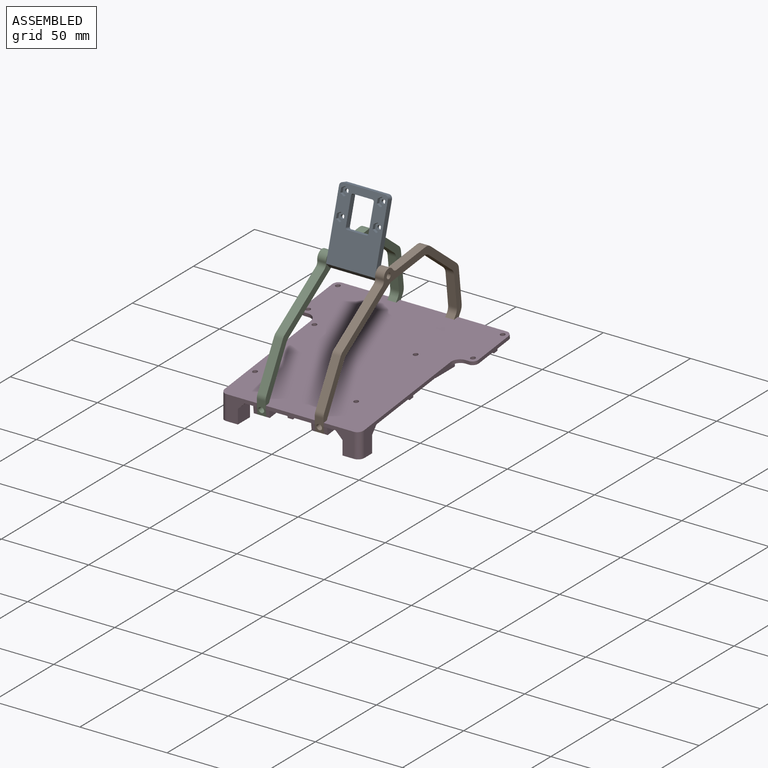
[diagram: assembled view]
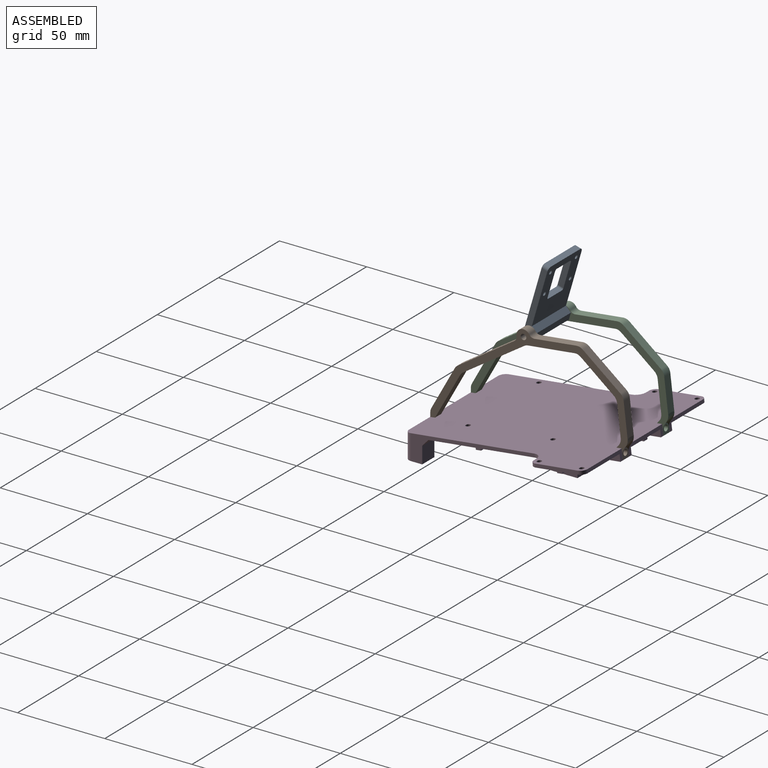
[diagram: assembled view, second angle]
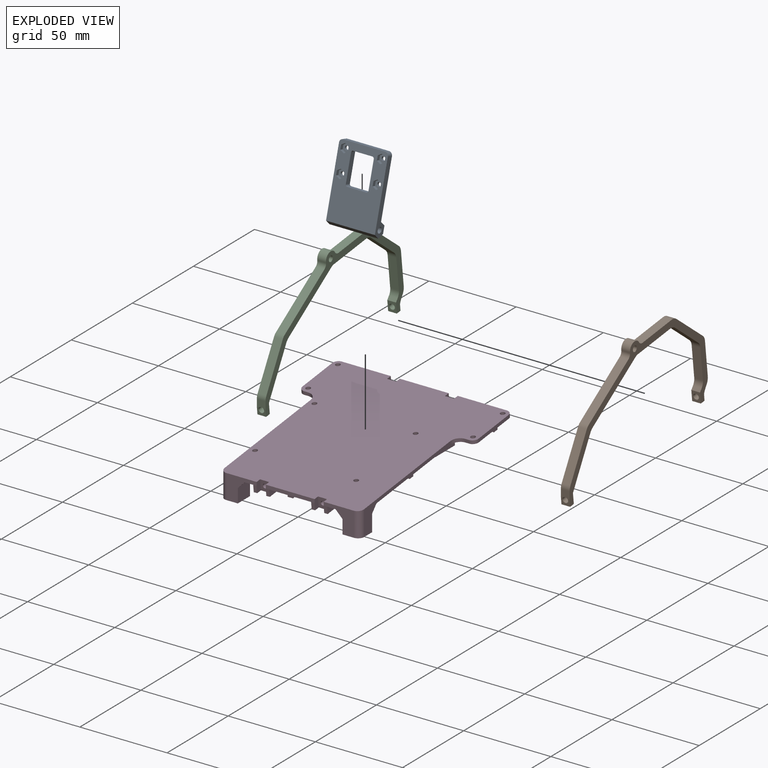
[diagram: exploded view]
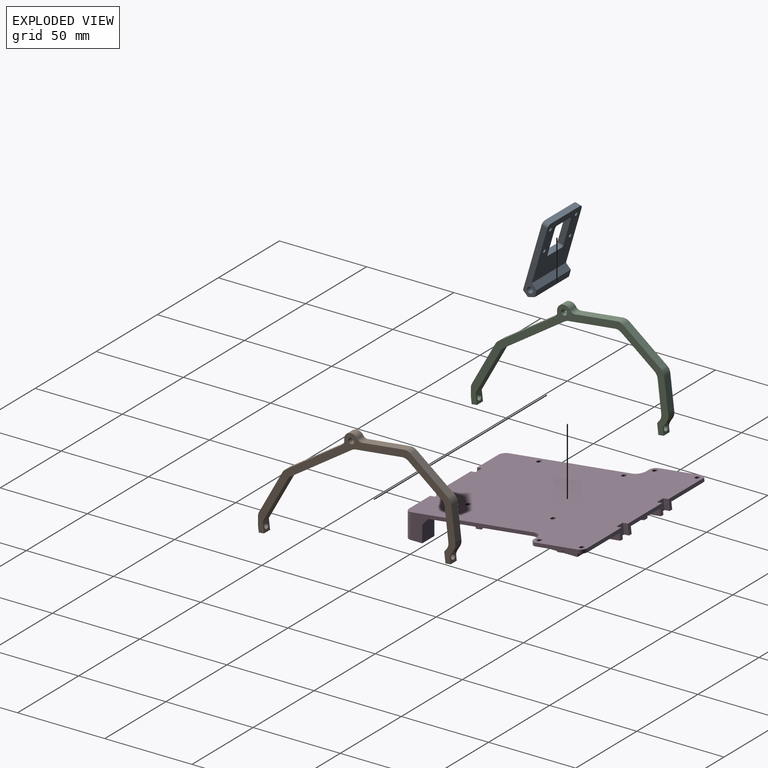
[diagram: exploded view, second angle]
ASSEMBLY  parts=4 mates=4
PART A: 52 faces, bbox 42x28x7 mm
  f0: cylinder r=1.1mm len=2.2mm, axis (0,0,1), area 10.4mm2, adj f4,f45
  f1: cylinder r=1.1mm len=2.2mm, axis (0,0,1), area 10.4mm2, adj f4,f38
  f2: cylinder r=1.1mm len=2.2mm, axis (0,0,1), area 10.4mm2, adj f4,f31
  f3: cylinder r=1.1mm len=2.2mm, axis (0,0,1), area 10.4mm2, adj f4,f24
  f4: plane 33.96x28mm, normal (0,0,1), area 707.3mm2, adj f0,f1,f2,f3,f6,f11,f12,f13
  f5: plane 40.02x28mm, normal (0,0,-1), area 828.2mm2, adj f9,f11,f12,f13,f14,f15,f16,f17
  f6: plane 28x3.5mm, normal (0.87,0,0.5), area 113.2mm2, adj f4,f7,f12,f13
  f7: plane 28x4.04mm, normal (0,0,1), area 113.2mm2, adj f6,f8,f12,f13
  f8: plane 28x3.5mm, normal (-0.87,0,0.5), area 113.2mm2, adj f7,f9,f12,f13
  f9: plane 28x3.5mm, normal (-0.87,0,-0.5), area 113.2mm2, adj f5,f8,f12,f13
  f10: cylinder r=1.65mm len=28mm, axis (0,1,0), area 290.3mm2, adj f12,f13
  f11: plane 24x3.5mm, normal (1,0,0), area 84mm2, adj f4,f5,f18,f19
  f12: plane 40.04x7mm, normal (0,-1,0), area 149.3mm2, adj f4,f5,f6,f7,f8,f9,f10,f19
  f13: plane 40.04x7mm, normal (0,1,0), area 149.3mm2, adj f4,f5,f6,f7,f8,f9,f10,f18
  f14: plane 11x3.5mm, normal (-1,0,0), area 38.5mm2, adj f4,f5,f20,f23
  f15: plane 15.5x3.5mm, normal (0,-1,0), area 54.2mm2, adj f4,f5,f22,f23
  f16: plane 11x3.5mm, normal (1,0,0), area 38.5mm2, adj f4,f5,f21,f22
  f17: plane 15.5x3.5mm, normal (0,1,0), area 54.3mm2, adj f4,f5,f20,f21
  f18: cylinder r=2mm len=3.5mm, axis (0,0,1), area 11mm2, adj f4,f5,f11,f13
  f19: cylinder r=2mm len=3.5mm, axis (0,0,-1), area 11mm2, adj f4,f5,f11,f12
  f20: cylinder r=1mm len=3.5mm, axis (0,0,-1), area 5.5mm2, adj f4,f5,f14,f17
  f21: cylinder r=1mm len=3.5mm, axis (0,0,1), area 5.5mm2, adj f4,f5,f16,f17
  f22: cylinder r=1mm len=3.5mm, axis (0,0,-1), area 5.5mm2, adj f4,f5,f15,f16
  f23: cylinder r=1mm len=3.5mm, axis (0,0,1), area 5.5mm2, adj f4,f5,f14,f15
  f24: plane 4.97x4.3mm, normal (0,0,-1), area 12.2mm2, adj f3,f25,f26,f27,f28,f29,f30
  f25: plane 2.48x2mm, normal (0,-1,0), area 5mm2, adj f5,f24,f26,f30
  f26: plane 2.15x2mm, normal (-0.87,-0.5,0), area 5mm2, adj f5,f24,f25,f27
  f27: plane 2.15x2mm, normal (-0.87,0.5,0), area 5mm2, adj f5,f24,f26,f28
  f28: plane 2.48x2mm, normal (0,1,0), area 5mm2, adj f5,f24,f27,f29
  f29: plane 2.15x2mm, normal (0.87,0.5,0), area 5mm2, adj f5,f24,f28,f30
  f30: plane 2.15x2mm, normal (0.87,-0.5,0), area 5mm2, adj f5,f24,f25,f29
  f31: plane 4.97x4.3mm, normal (0,0,-1), area 12.2mm2, adj f2,f32,f33,f34,f35,f36,f37
  f32: plane 2.48x2mm, normal (0,-1,0), area 5mm2, adj f5,f31,f33,f37
  f33: plane 2.15x2mm, normal (-0.87,-0.5,0), area 5mm2, adj f5,f31,f32,f34
  f34: plane 2.15x2mm, normal (-0.87,0.5,0), area 5mm2, adj f5,f31,f33,f35
  f35: plane 2.48x2mm, normal (0,1,0), area 5mm2, adj f5,f31,f34,f36
  f36: plane 2.15x2mm, normal (0.87,0.5,0), area 5mm2, adj f5,f31,f35,f37
  f37: plane 2.15x2mm, normal (0.87,-0.5,0), area 5mm2, adj f5,f31,f32,f36
  f38: plane 4.97x4.3mm, normal (0,0,-1), area 12.2mm2, adj f1,f39,f40,f41,f42,f43,f44
  f39: plane 2.48x2mm, normal (0,-1,0), area 5mm2, adj f5,f38,f40,f44
  f40: plane 2.15x2mm, normal (-0.87,-0.5,0), area 5mm2, adj f5,f38,f39,f41
  f41: plane 2.15x2mm, normal (-0.87,0.5,0), area 5mm2, adj f5,f38,f40,f42
  f42: plane 2.48x2mm, normal (0,1,0), area 5mm2, adj f5,f38,f41,f43
  f43: plane 2.15x2mm, normal (0.87,0.5,0), area 5mm2, adj f5,f38,f42,f44
  f44: plane 2.15x2mm, normal (0.87,-0.5,0), area 5mm2, adj f5,f38,f39,f43
  f45: plane 4.97x4.3mm, normal (0,0,-1), area 12.2mm2, adj f0,f46,f47,f48,f49,f50,f51
  f46: plane 2.48x2mm, normal (0,-1,0), area 5mm2, adj f5,f45,f47,f51
  f47: plane 2.15x2mm, normal (-0.87,-0.5,0), area 5mm2, adj f5,f45,f46,f48
  f48: plane 2.15x2mm, normal (-0.87,0.5,0), area 5mm2, adj f5,f45,f47,f49
  f49: plane 2.48x2mm, normal (0,1,0), area 5mm2, adj f5,f45,f48,f50
  f50: plane 2.15x2mm, normal (0.87,0.5,0), area 5mm2, adj f5,f45,f49,f51
  f51: plane 2.15x2mm, normal (0.87,-0.5,0), area 5mm2, adj f5,f45,f46,f50
PART B: 37 faces, bbox 10.4x113.6x65.9 mm
  f0: plane 113.47x65.94mm, normal (1,0,0), area 717.5mm2, adj f3,f4,f5,f6,f7,f8,f9,f10
  f1: plane 113.47x65.94mm, normal (-1,0,0), area 717.5mm2, adj f3,f4,f5,f6,f7,f8,f9,f10
  f2: cylinder r=1.6mm len=3.53mm, axis (0,0.99,0.12), area 30.2mm2, adj f3,f21
  f3: plane 5.96x5mm, normal (0,-0.99,-0.12), area 22mm2, adj f0,f1,f2,f4,f20
  f4: plane 5x2.98mm, normal (0,0.12,-0.99), area 15mm2, adj f0,f1,f3,f21
  f5: plane 19.25x5mm, normal (0,0.99,0.12), area 95.7mm2, adj f0,f1,f27,f29
  f6: plane 21.56x17mm, normal (0,0.62,0.79), area 137.3mm2, adj f0,f1,f29,f30
  f7: plane 24.04x5mm, normal (0,-0.12,0.99), area 121.1mm2, adj f0,f1,f25,f30
  f8: plane 32.45x21.43mm, normal (0,-0.55,0.83), area 194.5mm2, adj f0,f1,f26,f31
  f9: plane 24.24x13.44mm, normal (0,-0.87,0.49), area 138.6mm2, adj f0,f1,f31,f32
  f10: plane 5.14x4.48mm, normal (0,-1,0), area 20.7mm2, adj f0,f1,f11,f19,f32
  f11: plane 5x3.97mm, normal (0,-0.99,-0.12), area 13mm2, adj f0,f1,f10,f12,f19
  f12: plane 5x2.98mm, normal (0,0.12,-0.99), area 15mm2, adj f0,f1,f11,f13
  f13: plane 5.96x5mm, normal (0,0.99,0.12), area 22mm2, adj f0,f1,f12,f14,f19
  f14: plane 25.87x14.35mm, normal (0,0.87,-0.49), area 147.9mm2, adj f0,f1,f13,f33
  f15: plane 35.13x23.2mm, normal (0,0.55,-0.83), area 210.5mm2, adj f0,f1,f33,f34
  f16: plane 26.56x5mm, normal (0,0.12,-0.99), area 133.7mm2, adj f0,f1,f34,f35
  f17: plane 18.96x14.95mm, normal (0,-0.62,-0.79), area 120.7mm2, adj f0,f1,f35,f36
  f18: plane 17.73x5mm, normal (0,-0.99,-0.12), area 89.3mm2, adj f0,f1,f28,f36
  f19: cylinder r=1.6mm len=3.53mm, axis (0,-0.99,-0.12), area 30.2mm2, adj f10,f11,f13
  f20: plane 5x1.71mm, normal (0,-0.79,0.62), area 10.9mm2, adj f0,f1,f3,f28
  f21: plane 5.46x5mm, normal (0,0.99,0.12), area 16.8mm2, adj f0,f1,f2,f4,f22
  f22: cone r=2.5mm half-angle=45deg, axis (0,0.99,0.12), area 20.2mm2, adj f0,f1,f21,f27
  f23: cylinder r=4mm len=7.39mm, axis (1,0,0), area 54.4mm2, adj f0,f1,f25,f26
  f24: cylinder r=1.6mm len=5mm, axis (1,0,0), area 50.3mm2, adj f0,f1
  f25: cylinder r=3mm len=5mm, axis (1,0,0), area 16.9mm2, adj f0,f1,f7,f23
  f26: cylinder r=3mm len=5mm, axis (1,0,0), area 16.9mm2, adj f0,f1,f8,f23
  f27: torus R=8.57mm, axis (0,0.99,0.12), area 21mm2, adj f0,f1,f5,f22
  f28: cylinder r=5mm len=5mm, axis (-1,0,0), area 19.6mm2, adj f0,f1,f18,f20
  f29: cylinder r=5mm len=5mm, axis (-1,0,0), area 19.6mm2, adj f0,f1,f5,f6
  f30: cylinder r=5mm len=5mm, axis (-1,0,0), area 19.6mm2, adj f0,f1,f6,f7
  f31: cylinder r=5mm len=5mm, axis (-1,0,0), area 12mm2, adj f0,f1,f8,f9
  f32: cylinder r=5mm len=5mm, axis (-1,0,0), area 12.7mm2, adj f0,f1,f9,f10
  f33: cylinder r=5mm len=5mm, axis (1,0,0), area 12mm2, adj f0,f1,f14,f15
  f34: cylinder r=5mm len=5mm, axis (1,0,0), area 11.7mm2, adj f0,f1,f15,f16
  f35: cylinder r=5mm len=5mm, axis (1,0,0), area 19.6mm2, adj f0,f1,f16,f17
  f36: cylinder r=5mm len=5mm, axis (1,0,0), area 19.6mm2, adj f0,f1,f17,f18
PART C: 44 faces, bbox 10.4x113.6x65.9 mm
  f0: cylinder r=1.6mm len=3.2mm, axis (-1,0,0), area 25.1mm2, adj f2,f37
  f1: plane 113.47x65.94mm, normal (-1,0,0), area 697.4mm2, adj f4,f5,f6,f7,f8,f9,f10,f11
  f2: plane 113.47x65.94mm, normal (1,0,0), area 717.5mm2, adj f0,f4,f5,f6,f7,f8,f9,f10
  f3: cylinder r=1.6mm len=3.53mm, axis (0,0.99,0.12), area 30.2mm2, adj f4,f22
  f4: plane 5.96x5mm, normal (0,-0.99,-0.12), area 22mm2, adj f1,f2,f3,f5,f21
  f5: plane 5x2.98mm, normal (0,0.12,-0.99), area 15mm2, adj f1,f2,f4,f22
  f6: plane 19.25x5mm, normal (0,0.99,0.12), area 95.7mm2, adj f1,f2,f27,f29
  f7: plane 21.56x17mm, normal (0,0.62,0.79), area 137.3mm2, adj f1,f2,f29,f30
  f8: plane 24.04x5mm, normal (0,-0.12,0.99), area 121.1mm2, adj f1,f2,f25,f30
  f9: plane 32.45x21.43mm, normal (0,-0.55,0.83), area 194.5mm2, adj f1,f2,f26,f31
  f10: plane 24.24x13.44mm, normal (0,-0.87,0.49), area 138.6mm2, adj f1,f2,f31,f32
  f11: plane 5.14x4.48mm, normal (0,-1,0), area 20.7mm2, adj f1,f2,f12,f20,f32
  f12: plane 5x3.97mm, normal (0,-0.99,-0.12), area 13mm2, adj f1,f2,f11,f13,f20
  f13: plane 5x2.98mm, normal (0,0.12,-0.99), area 15mm2, adj f1,f2,f12,f14
  f14: plane 5.96x5mm, normal (0,0.99,0.12), area 22mm2, adj f1,f2,f13,f15,f20
  f15: plane 25.87x14.35mm, normal (0,0.87,-0.49), area 147.9mm2, adj f1,f2,f14,f33
  f16: plane 35.13x23.2mm, normal (0,0.55,-0.83), area 210.5mm2, adj f1,f2,f33,f34
  f17: plane 26.56x5mm, normal (0,0.12,-0.99), area 133.7mm2, adj f1,f2,f34,f35
  f18: plane 18.96x14.95mm, normal (0,-0.62,-0.79), area 120.7mm2, adj f1,f2,f35,f36
  f19: plane 17.73x5mm, normal (0,-0.99,-0.12), area 89.3mm2, adj f1,f2,f28,f36
  f20: cylinder r=1.6mm len=3.53mm, axis (0,-0.99,-0.12), area 30.2mm2, adj f11,f12,f14
  f21: plane 5x1.71mm, normal (0,-0.79,0.62), area 10.9mm2, adj f1,f2,f4,f28
  f22: plane 5.46x5mm, normal (0,0.99,0.12), area 16.8mm2, adj f1,f2,f3,f5,f23
  f23: cone r=2.5mm half-angle=45deg, axis (0,0.99,0.12), area 20.2mm2, adj f1,f2,f22,f27
  f24: cylinder r=4mm len=7.39mm, axis (-1,0,0), area 54.4mm2, adj f1,f2,f25,f26
  f25: cylinder r=3mm len=5mm, axis (-1,0,0), area 16.9mm2, adj f1,f2,f8,f24
  f26: cylinder r=3mm len=5mm, axis (-1,0,0), area 16.9mm2, adj f1,f2,f9,f24
  f27: torus R=8.57mm, axis (0,0.99,0.12), area 21mm2, adj f1,f2,f6,f23
  f28: cylinder r=5mm len=5mm, axis (1,0,0), area 19.6mm2, adj f1,f2,f19,f21
  f29: cylinder r=5mm len=5mm, axis (1,0,0), area 19.6mm2, adj f1,f2,f6,f7
  f30: cylinder r=5mm len=5mm, axis (1,0,0), area 19.6mm2, adj f1,f2,f7,f8
  f31: cylinder r=5mm len=5mm, axis (1,0,0), area 12mm2, adj f1,f2,f9,f10
  f32: cylinder r=5mm len=5mm, axis (1,0,0), area 12.7mm2, adj f1,f2,f10,f11
  f33: cylinder r=5mm len=5mm, axis (-1,0,0), area 12mm2, adj f1,f2,f15,f16
  f34: cylinder r=5mm len=5mm, axis (-1,0,0), area 11.7mm2, adj f1,f2,f16,f17
  f35: cylinder r=5mm len=5mm, axis (-1,0,0), area 19.6mm2, adj f1,f2,f17,f18
  f36: cylinder r=5mm len=5mm, axis (-1,0,0), area 19.6mm2, adj f1,f2,f18,f19
  f37: plane 6.54x6.05mm, normal (-1,0,0), area 20.1mm2, adj f0,f38,f39,f40,f41,f42,f43
  f38: plane 2.64x2.5mm, normal (0,-0.6,0.8), area 8.2mm2, adj f1,f37,f39,f43
  f39: plane 3.02x2.5mm, normal (0,0.39,0.92), area 8.2mm2, adj f1,f37,f38,f40
  f40: plane 3.27x2.5mm, normal (0,0.99,0.12), area 8.2mm2, adj f1,f37,f39,f41
  f41: plane 2.64x2.5mm, normal (0,0.6,-0.8), area 8.2mm2, adj f1,f37,f40,f42
  f42: plane 3.02x2.5mm, normal (0,-0.39,-0.92), area 8.2mm2, adj f1,f37,f41,f43
  f43: plane 3.27x2.5mm, normal (0,-0.99,-0.12), area 8.2mm2, adj f1,f37,f38,f42
PART D: 121 faces, bbox 101x110.5x27 mm
  f0: plane 15x9.98mm, normal (0,-1,0), area 109.4mm2, adj f1,f3,f35,f93,f112,f118,f119
  f1: plane 16x6.84mm, normal (1,0,0), area 94.3mm2, adj f0,f36,f112,f119
  f2: plane 50.99x20.5mm, normal (0,0.12,-0.99), area 667.9mm2, adj f4,f20,f21,f22,f35,f37,f43,f45
  f3: plane 50.99x25.5mm, normal (0,0.12,-0.99), area 1084.5mm2, adj f0,f108,f109,f110,f112,f118
  f4: plane 10x0.99mm, normal (0,0.99,0.12), area 10mm2, adj f2,f20,f35,f93
  f5: plane 50.99x25.5mm, normal (0,0.12,-0.99), area 1078.8mm2, adj f6,f7,f51,f100,f101,f111,f117
  f6: plane 25.5x0.99mm, normal (0,0.99,0.12), area 25.5mm2, adj f5,f93,f101,f117
  f7: plane 15x9.98mm, normal (0,-1,0), area 109.4mm2, adj f5,f32,f34,f93,f111,f117,f120
  f8: plane 40.63x38.5mm, normal (0,0.12,-0.99), area 1286.9mm2, adj f16,f17,f19,f52,f70,f73,f81,f103
  f9: plane 40.63x38.5mm, normal (0,0.12,-0.99), area 1286.9mm2, adj f17,f18,f20,f49,f66,f67,f82,f106
  f10: plane 49x12.41mm, normal (0,0.12,-0.99), area 512.5mm2, adj f14,f23,f24,f39,f47,f75,f76,f83
  f11: plane 49x12.41mm, normal (0,0.12,-0.99), area 512.5mm2, adj f13,f14,f22,f38,f46,f78,f79,f84
  f12: plane 50.99x20.5mm, normal (0,0.12,-0.99), area 673.6mm2, adj f19,f24,f25,f32,f40,f44,f48,f99
  f13: plane 28.05x5.96mm, normal (0,0.99,0.12), area 64.1mm2, adj f11,f15,f38,f62,f79,f80
  f14: plane 28x5.96mm, normal (0,0.99,0.12), area 75mm2, adj f10,f11,f15,f60,f63,f75,f77,f78
  f15: plane 109.77x101mm, normal (0,-0.12,0.99), area 9384mm2, adj f13,f14,f16,f17,f18,f19,f20,f21
  f16: plane 17.3x14.01mm, normal (0,-1,0), area 120.9mm2, adj f8,f15,f26,f28,f42,f57,f71,f114
  f17: plane 28x2.01mm, normal (0,-1,0), area 56.4mm2, adj f8,f9,f15,f55,f58,f68,f72,f105
  f18: plane 17.3x14.01mm, normal (0,-1,0), area 120.9mm2, adj f9,f15,f30,f31,f41,f54,f65,f115
  f19: plane 70.75x22.76mm, normal (1,0,0), area 234.7mm2, adj f8,f12,f15,f26,f27,f42,f44,f93
  f20: plane 70.75x22.76mm, normal (-1,0,0), area 234.7mm2, adj f2,f4,f9,f15,f29,f31,f41,f43
  f21: plane 2.25x1.99mm, normal (0,-0.99,-0.12), area 4.5mm2, adj f2,f15,f37,f43
  f22: plane 24.57x4.86mm, normal (-1,0,0), area 52mm2, adj f2,f11,f15,f37,f38,f93,f94,f95
  f23: plane 28.05x5.96mm, normal (0,0.99,0.12), area 64.1mm2, adj f10,f15,f39,f61,f76,f77
  f24: plane 24.57x4.86mm, normal (1,0,0), area 52mm2, adj f10,f12,f15,f39,f40,f93,f98,f99
  f25: plane 2.25x1.99mm, normal (0,-0.99,-0.12), area 4.5mm2, adj f12,f15,f40,f44
  f26: plane 10x10mm, normal (0,0,-1), area 97.4mm2, adj f16,f19,f27,f28,f42
  f27: plane 10.47x9.63mm, normal (0,1,0), area 96.4mm2, adj f19,f26,f28,f113,f114
  f28: plane 10x9.15mm, normal (-1,0,0), area 85.6mm2, adj f16,f26,f27,f114
  f29: plane 10.47x9.63mm, normal (0,1,0), area 96.4mm2, adj f20,f30,f31,f115,f116
  f30: plane 10x9.15mm, normal (1,0,0), area 85.6mm2, adj f18,f29,f31,f115
  f31: plane 10x10mm, normal (0,0,-1), area 97.4mm2, adj f18,f20,f29,f30,f41
  f32: plane 51.11x12.18mm, normal (1,0,0), area 210.1mm2, adj f7,f12,f33,f93,f99,f102,f120
  f33: plane 14x10.87mm, normal (0,1,0), area 116.7mm2, adj f32,f34,f93,f111,f120
  f34: plane 16x6.84mm, normal (-1,0,0), area 94.3mm2, adj f7,f33,f111,f120
  f35: plane 51.11x12.18mm, normal (-1,0,0), area 210.1mm2, adj f0,f2,f4,f36,f93,f94,f119
  f36: plane 14x10.87mm, normal (0,1,0), area 116.7mm2, adj f1,f35,f93,f112,f119
  f37: cylinder r=3.25mm len=3.46mm, axis (0,-0.12,0.99), area 10.2mm2, adj f2,f15,f21,f22
  f38: cylinder r=3.25mm len=3.46mm, axis (0,0.12,-0.99), area 10.2mm2, adj f11,f13,f15,f22
  f39: cylinder r=3.25mm len=3.46mm, axis (0,0.12,-0.99), area 10.2mm2, adj f10,f15,f23,f24
  f40: cylinder r=3.25mm len=3.46mm, axis (0,-0.12,0.99), area 10.2mm2, adj f12,f15,f24,f25
  f41: cylinder r=3.5mm len=14.43mm, axis (0,0,-1), area 77.9mm2, adj f15,f18,f20,f31
  f42: cylinder r=3.5mm len=14.43mm, axis (0,0,1), area 77.9mm2, adj f15,f16,f19,f26
  f43: cylinder r=5mm len=5.2mm, axis (0,0.12,-0.99), area 15.7mm2, adj f2,f15,f20,f21
  f44: cylinder r=5mm len=5.2mm, axis (0,-0.12,0.99), area 15.7mm2, adj f12,f15,f19,f25
  f45: cylinder r=1.35mm len=2.92mm, axis (0,-0.12,0.99), area 17mm2, adj f2,f15
  f46: cylinder r=1.35mm len=2.92mm, axis (0,-0.12,0.99), area 17mm2, adj f11,f15
  f47: cylinder r=1.35mm len=2.92mm, axis (0,-0.12,0.99), area 17mm2, adj f10,f15
  f48: cylinder r=1.35mm len=2.92mm, axis (0,-0.12,0.99), area 17mm2, adj f12,f15
  f49: cylinder r=1.35mm len=2.92mm, axis (0,-0.12,0.99), area 17mm2, adj f9,f15
  f50: cylinder r=1.35mm len=2.92mm, axis (0,-0.12,0.99), area 17mm2, adj f2,f15
  f51: cylinder r=1.35mm len=2.92mm, axis (0,-0.12,0.99), area 17mm2, adj f5,f15
  f52: cylinder r=1.35mm len=2.92mm, axis (0,-0.12,0.99), area 17mm2, adj f8,f15
  f53: plane 5.96x5.2mm, normal (0,-0.99,-0.12), area 26.3mm2, adj f15,f54,f55,f69,f87
  f54: plane 6.31x3.45mm, normal (1,0,0), area 17.8mm2, adj f15,f18,f53,f65,f69
  f55: plane 6.31x3.45mm, normal (-1,0,0), area 17.8mm2, adj f15,f17,f53,f68,f69
  f56: plane 5.96x5.2mm, normal (0,-0.99,-0.12), area 26.3mm2, adj f15,f57,f58,f74,f85
  f57: plane 6.31x3.45mm, normal (-1,0,0), area 17.8mm2, adj f15,f16,f56,f71,f74
  f58: plane 6.31x3.45mm, normal (1,0,0), area 17.8mm2, adj f15,f17,f56,f72,f74
  f59: plane 5.96x5.2mm, normal (0,0.99,0.12), area 26.3mm2, adj f15,f60,f61,f77,f89
  f60: plane 6.31x3.68mm, normal (1,0,0), area 18mm2, adj f14,f15,f59,f77
  f61: plane 6.31x3.68mm, normal (-1,0,0), area 18mm2, adj f15,f23,f59,f77
  f62: plane 6.31x3.68mm, normal (1,0,0), area 18mm2, adj f13,f15,f64,f80
  f63: plane 6.31x3.68mm, normal (-1,0,0), area 18mm2, adj f14,f15,f64,f80
  f64: plane 5.96x5.2mm, normal (0,0.99,0.12), area 26.3mm2, adj f15,f62,f63,f80,f91
  f65: plane 3.97x2mm, normal (0,-0.99,-0.12), area 8mm2, adj f18,f54,f66,f69
  f66: plane 9.93x5.15mm, normal (-1,0,0), area 32mm2, adj f9,f65,f69,f82
  f67: plane 9.93x5.15mm, normal (1,0,0), area 32mm2, adj f9,f68,f69,f82
  f68: plane 3.97x2mm, normal (0,-0.99,-0.12), area 8mm2, adj f17,f55,f67,f69
  f69: plane 9.2x5.96mm, normal (0,0.12,-0.99), area 39.6mm2, adj f53,f54,f55,f65,f66,f67,f68,f82
  f70: plane 9.93x5.15mm, normal (1,0,0), area 32mm2, adj f8,f71,f74,f81
  f71: plane 3.97x2mm, normal (0,-0.99,-0.12), area 8mm2, adj f16,f57,f70,f74
  f72: plane 3.97x2mm, normal (0,-0.99,-0.12), area 8mm2, adj f17,f58,f73,f74
  f73: plane 9.93x5.15mm, normal (-1,0,0), area 32mm2, adj f8,f72,f74,f81
  f74: plane 9.2x5.96mm, normal (0,0.12,-0.99), area 39.6mm2, adj f56,f57,f58,f70,f71,f72,f73,f81
  f75: plane 10.4x4.68mm, normal (-1,0,0), area 32mm2, adj f10,f14,f77,f83
  f76: plane 10.4x4.68mm, normal (1,0,0), area 32mm2, adj f10,f23,f77,f83
  f77: plane 9.2x5.96mm, normal (0,0.12,-0.99), area 39.6mm2, adj f14,f23,f59,f60,f61,f75,f76,f83
  f78: plane 10.4x4.68mm, normal (1,0,0), area 32mm2, adj f11,f14,f80,f84
  f79: plane 10.4x4.68mm, normal (-1,0,0), area 32mm2, adj f11,f13,f80,f84
  f80: plane 9.2x5.96mm, normal (0,0.12,-0.99), area 39.6mm2, adj f13,f14,f62,f63,f64,f78,f79,f84
  f81: plane 9.2x4.44mm, normal (0,0.79,-0.62), area 52mm2, adj f8,f70,f73,f74
  f82: plane 9.2x4.44mm, normal (0,0.79,-0.62), area 52mm2, adj f9,f66,f67,f69
  f83: plane 9.2x4.44mm, normal (0,-0.62,-0.79), area 52mm2, adj f10,f75,f76,f77
  f84: plane 9.2x4.44mm, normal (0,-0.62,-0.79), area 52mm2, adj f11,f78,f79,f80
  f85: cylinder r=1.25mm len=4.27mm, axis (0,-0.99,-0.12), area 31.4mm2, adj f56,f86
  f86: plane 2.5x2.48mm, normal (0,-0.99,-0.12), area 4.9mm2, adj f85
  f87: cylinder r=1.25mm len=4.27mm, axis (0,-0.99,-0.12), area 31.4mm2, adj f53,f88
  f88: plane 2.5x2.48mm, normal (0,-0.99,-0.12), area 4.9mm2, adj f87
  f89: cylinder r=1.25mm len=4.27mm, axis (0,0.99,0.12), area 31.4mm2, adj f59,f90
  f90: plane 2.5x2.48mm, normal (0,0.99,0.12), area 4.9mm2, adj f89
  f91: cylinder r=1.25mm len=4.27mm, axis (0,0.99,0.12), area 31.4mm2, adj f64,f92
  f92: plane 2.5x2.48mm, normal (0,0.99,0.12), area 4.9mm2, adj f91
  f93: plane 110x101mm, normal (0,0.12,-0.99), area 1129.1mm2, adj f0,f4,f6,f7,f14,f19,f20,f22
  f94: plane 20.5x0.99mm, normal (0,-0.99,-0.12), area 20.5mm2, adj f2,f22,f35,f93
  f95: plane 49x0.99mm, normal (0,0.99,0.12), area 49mm2, adj f11,f22,f93,f96
  f96: plane 12.53x2.46mm, normal (-1,0,0), area 12.5mm2, adj f11,f14,f93,f95
  f97: plane 12.53x2.46mm, normal (1,0,0), area 12.5mm2, adj f10,f14,f93,f98
  f98: plane 49x0.99mm, normal (0,0.99,0.12), area 49mm2, adj f10,f24,f93,f97
  f99: plane 20.5x0.99mm, normal (0,-0.99,-0.12), area 20.5mm2, adj f12,f24,f32,f93
  f100: plane 14.5x0.99mm, normal (0,-0.99,-0.12), area 14mm2, adj f5,f93,f101,f111
  f101: plane 51.11x7.02mm, normal (1,0,0), area 51.3mm2, adj f5,f6,f93,f100
  f102: plane 10x0.99mm, normal (0,0.99,0.12), area 10mm2, adj f12,f19,f32,f93
  f103: plane 38.5x0.99mm, normal (0,-0.99,-0.12), area 38.5mm2, adj f8,f19,f93,f104
  f104: plane 40.75x5.8mm, normal (1,0,0), area 40.9mm2, adj f8,f93,f103,f105
  f105: plane 3x0.99mm, normal (0,-0.99,-0.12), area 3mm2, adj f17,f93,f104,f106
  f106: plane 40.75x5.8mm, normal (-1,0,0), area 40.9mm2, adj f9,f93,f105,f107
  f107: plane 38.5x0.99mm, normal (0,-0.99,-0.12), area 38.5mm2, adj f9,f20,f93,f106
  f108: plane 25.5x0.99mm, normal (0,0.99,0.12), area 25.5mm2, adj f3,f93,f109,f118
  f109: plane 51.11x7.02mm, normal (-1,0,0), area 51.3mm2, adj f3,f93,f108,f110
  f110: plane 14.5x0.99mm, normal (0,-0.99,-0.12), area 14mm2, adj f3,f93,f109,f112
  f111: plane 18.72x7.23mm, normal (-0.71,0.08,-0.7), area 117.7mm2, adj f5,f7,f33,f34,f93,f100
  f112: plane 18.72x7.23mm, normal (0.71,0.08,-0.7), area 117.7mm2, adj f0,f1,f3,f36,f93,f110
  f113: plane 14x3.97mm, normal (0,0.75,-0.66), area 65mm2, adj f8,f19,f27,f114
  f114: plane 13.53x5.63mm, normal (-0.71,0.08,-0.7), area 65.8mm2, adj f8,f16,f27,f28,f113
  f115: plane 13.53x5.63mm, normal (0.71,0.08,-0.7), area 65.8mm2, adj f9,f18,f29,f30,f116
  f116: plane 14x3.97mm, normal (0,0.75,-0.66), area 65mm2, adj f9,f20,f29,f115
  f117: plane 32.39x4.82mm, normal (-1,0,0), area 32.6mm2, adj f5,f6,f7,f93
  f118: plane 32.39x4.82mm, normal (1,0,0), area 32.6mm2, adj f0,f3,f93,f108
  f119: plane 16x10mm, normal (0,0,-1), area 160mm2, adj f0,f1,f35,f36
  f120: plane 16x10mm, normal (0,0,-1), area 160mm2, adj f7,f32,f33,f34
PLACE A rot(axis=(-0.62,-0.62,-0.47),129.8deg) t=(-48.39,44.58,78.92)mm
PLACE B t=(-48.29,-8.84,9.26)mm
PLACE C t=(-48.29,-8.84,9.26)mm
PLACE D t=(-48.29,-8.84,9.26)mm fixed
MATE planar A.f12 <-> C.f2  axis (-1,0,0) through (-62.39,42.05,76.51)mm
MATE fastened B.f27 <-> D.f89  axis (0,0.99,0.12) through (-31.69,-5.74,20.62)mm
MATE fastened D.f91 <-> C.f27  axis (0,-0.99,-0.12) through (-64.89,-5.74,20.62)mm
MATE cylindrical A.f10 <-> B.f23  axis (1,0,0) through (-34.39,44.58,78.92)mm
